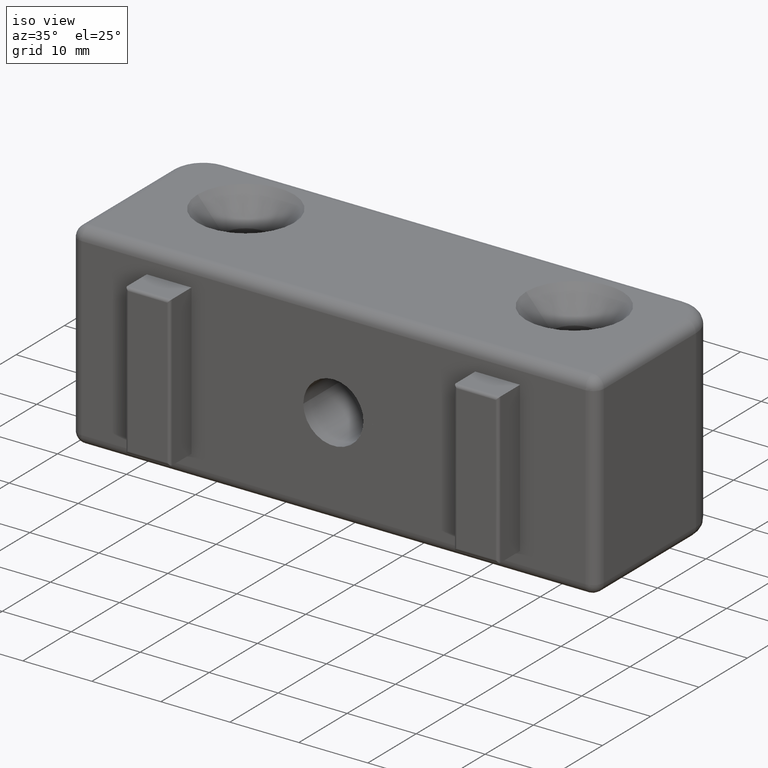
[diagram: clean part render]
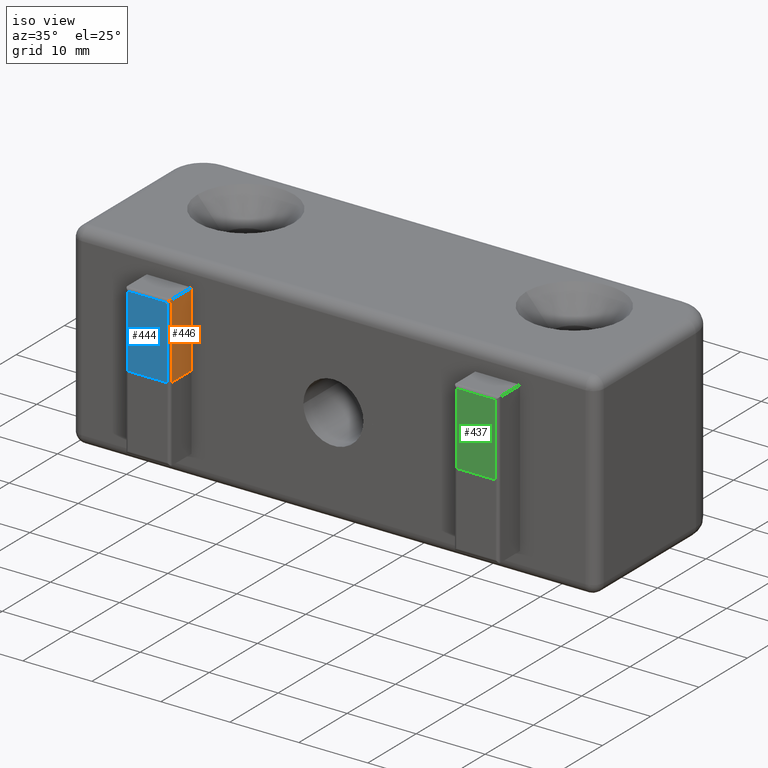
[diagram: same view with three faces highlighted in distinct colors, each labeled with its STEP entity id]
A machine part, iso view with three faces highlighted in distinct colors.
Their STEP definitions:

[orange] entity #446 — the highlighted planar face has unit normal (-1, 0, 0).
#15 = LINE ( 'NONE', #10012, #16 ) ;
#16 = VECTOR ( 'NONE', #9854, 39.37007874015748100 ) ;
#17 = LINE ( 'NONE', #10071, #18 ) ;
#18 = VECTOR ( 'NONE', #10006, 39.37007874015748100 ) ;
#446 = ADVANCED_FACE ( 'NONE', ( #1022 ), #1508, .F. ) ;
#504 = EDGE_CURVE ( 'NONE', #5193, #5182, #1107, .T. ) ;
#1022 = FACE_OUTER_BOUND ( 'NONE', #5447, .T. ) ;
#1097 = LINE ( 'NONE', #9904, #1109 ) ;
#1107 = LINE ( 'NONE', #3887, #1108 ) ;
#1108 = VECTOR ( 'NONE', #3891, 39.37007874015748100 ) ;
#1109 = VECTOR ( 'NONE', #9966, 39.37007874015748100 ) ;
#1229 = EDGE_CURVE ( 'NONE', #5213, #5215, #1097, .T. ) ;
#1239 = EDGE_CURVE ( 'NONE', #5213, #5182, #15, .T. ) ;
#1240 = EDGE_CURVE ( 'NONE', #5215, #5193, #17, .T. ) ;
#1461 = DIRECTION ( 'NONE',  ( 0.0000000000000000000, 0.0000000000000000000, 1.000000000000000000 ) ) ;
#1496 = DIRECTION ( 'NONE',  ( -1.000000000000000000, 0.0000000000000000000, 0.0000000000000000000 ) ) ;
#1508 = PLANE ( 'NONE',  #3757 ) ;
#1511 = CARTESIAN_POINT ( 'NONE',  ( -0.8100000000000000500, 2.204364238465238300E-017, 0.5625000000000000000 ) ) ;
#2173 = CARTESIAN_POINT ( 'NONE',  ( -0.8100000000000000500, -0.1593749999999996800, 0.4284999999999998800 ) ) ;
#2205 = CARTESIAN_POINT ( 'NONE',  ( -0.8100000000000000500, 3.122849337825774000E-017, 0.4284999999999998800 ) ) ;
#2326 = CARTESIAN_POINT ( 'NONE',  ( -0.8100000000000000500, -0.1593749999999996800, 0.0000000000000000000 ) ) ;
#2515 = CARTESIAN_POINT ( 'NONE',  ( -0.8100000000000000500, 2.204364238465238300E-017, 0.0000000000000000000 ) ) ;
#3757 = AXIS2_PLACEMENT_3D ( 'NONE', #1511, #1496, #1461 ) ;
#3887 = CARTESIAN_POINT ( 'NONE',  ( -0.8100000000000000500, 2.204364238465238300E-017, 0.0000000000000000000 ) ) ;
#3891 = DIRECTION ( 'NONE',  ( 0.0000000000000000000, 1.000000000000000000, 0.0000000000000000000 ) ) ;
#4835 = ORIENTED_EDGE ( 'NONE', *, *, #1240, .T. ) ;
#4836 = ORIENTED_EDGE ( 'NONE', *, *, #504, .T. ) ;
#4837 = ORIENTED_EDGE ( 'NONE', *, *, #1239, .F. ) ;
#4838 = ORIENTED_EDGE ( 'NONE', *, *, #1229, .T. ) ;
#5182 = VERTEX_POINT ( 'NONE', #2515 ) ;
#5193 = VERTEX_POINT ( 'NONE', #2326 ) ;
#5213 = VERTEX_POINT ( 'NONE', #2205 ) ;
#5215 = VERTEX_POINT ( 'NONE', #2173 ) ;
#5447 = EDGE_LOOP ( 'NONE', ( #4835, #4836, #4837, #4838 ) ) ;
#9854 = DIRECTION ( 'NONE',  ( -0.0000000000000000000, -0.0000000000000000000, -1.000000000000000000 ) ) ;
#9904 = CARTESIAN_POINT ( 'NONE',  ( -0.8100000000000000500, 2.204364238465238300E-017, 0.4284999999999998800 ) ) ;
#9966 = DIRECTION ( 'NONE',  ( 0.0000000000000000000, -1.000000000000000000, 0.0000000000000000000 ) ) ;
#10006 = DIRECTION ( 'NONE',  ( 0.0000000000000000000, 0.0000000000000000000, -1.000000000000000000 ) ) ;
#10012 = CARTESIAN_POINT ( 'NONE',  ( -0.8100000000000000500, 2.204364238465238300E-017, 0.5625000000000000000 ) ) ;
#10071 = CARTESIAN_POINT ( 'NONE',  ( -0.8100000000000000500, -0.1593749999999996800, 0.5625000000000000000 ) ) ;

[blue] entity #444 — the highlighted planar face has unit normal (-0, 1, 0).
#5 = LINE ( 'NONE', #9855, #6 ) ;
#6 = VECTOR ( 'NONE', #10002, 39.37007874015748100 ) ;
#11 = LINE ( 'NONE', #10032, #12 ) ;
#12 = VECTOR ( 'NONE', #10082, 39.37007874015748100 ) ;
#13 = LINE ( 'NONE', #10024, #14 ) ;
#14 = VECTOR ( 'NONE', #10028, 39.37007874015748100 ) ;
#444 = ADVANCED_FACE ( 'NONE', ( #1018 ), #1365, .F. ) ;
#528 = EDGE_CURVE ( 'NONE', #5185, #5179, #1967, .T. ) ;
#1018 = FACE_OUTER_BOUND ( 'NONE', #5442, .T. ) ;
#1232 = EDGE_CURVE ( 'NONE', #5179, #5247, #5, .T. ) ;
#1235 = EDGE_CURVE ( 'NONE', #5221, #5185, #11, .T. ) ;
#1236 = EDGE_CURVE ( 'NONE', #5247, #5221, #13, .T. ) ;
#1365 = PLANE ( 'NONE',  #3755 ) ;
#1510 = DIRECTION ( 'NONE',  ( -1.000000000000000000, -1.071312938691868600E-015, 0.0000000000000000000 ) ) ;
#1513 = DIRECTION ( 'NONE',  ( -1.071312938691868600E-015, 1.000000000000000000, 0.0000000000000000000 ) ) ;
#1524 = CARTESIAN_POINT ( 'NONE',  ( -1.064999999999999900, -0.1749999999999999300, 0.5625000000000000000 ) ) ;
#1957 = VECTOR ( 'NONE', #3921, 39.37007874015748100 ) ;
#1967 = LINE ( 'NONE', #3997, #1957 ) ;
#2111 = CARTESIAN_POINT ( 'NONE',  ( -1.049374999999999900, -0.1749999999999999300, 0.0000000000000000000 ) ) ;
#2120 = CARTESIAN_POINT ( 'NONE',  ( -0.8256250000000001600, -0.1749999999999996800, 0.0000000000000000000 ) ) ;
#2161 = CARTESIAN_POINT ( 'NONE',  ( -1.049374999999999900, -0.1749999999999999300, 0.4128749999999998800 ) ) ;
#2525 = CARTESIAN_POINT ( 'NONE',  ( -0.8256250000000001600, -0.1749999999999996800, 0.4128749999999998800 ) ) ;
#3755 = AXIS2_PLACEMENT_3D ( 'NONE', #1524, #1513, #1510 ) ;
#3921 = DIRECTION ( 'NONE',  ( 1.000000000000000000, 1.071312938691868600E-015, 0.0000000000000000000 ) ) ;
#3997 = CARTESIAN_POINT ( 'NONE',  ( -1.064999999999999900, -0.1749999999999999300, 0.0000000000000000000 ) ) ;
#4827 = ORIENTED_EDGE ( 'NONE', *, *, #1235, .T. ) ;
#4828 = ORIENTED_EDGE ( 'NONE', *, *, #528, .T. ) ;
#4829 = ORIENTED_EDGE ( 'NONE', *, *, #1232, .T. ) ;
#4830 = ORIENTED_EDGE ( 'NONE', *, *, #1236, .T. ) ;
#5179 = VERTEX_POINT ( 'NONE', #2120 ) ;
#5185 = VERTEX_POINT ( 'NONE', #2111 ) ;
#5221 = VERTEX_POINT ( 'NONE', #2161 ) ;
#5247 = VERTEX_POINT ( 'NONE', #2525 ) ;
#5442 = EDGE_LOOP ( 'NONE', ( #4827, #4828, #4829, #4830 ) ) ;
#9855 = CARTESIAN_POINT ( 'NONE',  ( -0.8256250000000001600, -0.1749999999999996800, 0.5625000000000000000 ) ) ;
#10002 = DIRECTION ( 'NONE',  ( -0.0000000000000000000, -0.0000000000000000000, 1.000000000000000000 ) ) ;
#10024 = CARTESIAN_POINT ( 'NONE',  ( -1.064999999999999900, -0.1749999999999999300, 0.4128749999999998800 ) ) ;
#10028 = DIRECTION ( 'NONE',  ( -1.000000000000000000, -1.071312938691868600E-015, -0.0000000000000000000 ) ) ;
#10032 = CARTESIAN_POINT ( 'NONE',  ( -1.049374999999999900, -0.1749999999999999300, 0.5625000000000000000 ) ) ;
#10082 = DIRECTION ( 'NONE',  ( 0.0000000000000000000, 0.0000000000000000000, -1.000000000000000000 ) ) ;

[green] entity #437 — the highlighted planar face has unit normal (0, 1, 0).
#437 = ADVANCED_FACE ( 'NONE', ( #1008 ), #2328, .F. ) ;
#536 = EDGE_CURVE ( 'NONE', #5237, #5156, #1969, .T. ) ;
#1008 = FACE_OUTER_BOUND ( 'NONE', #5435, .T. ) ;
#1207 = EDGE_CURVE ( 'NONE', #5216, #5214, #2019, .T. ) ;
#1222 = EDGE_CURVE ( 'NONE', #5156, #5216, #2058, .T. ) ;
#1223 = EDGE_CURVE ( 'NONE', #5214, #5237, #2060, .T. ) ;
#1969 = LINE ( 'NONE', #3982, #1980 ) ;
#1980 = VECTOR ( 'NONE', #3872, 39.37007874015748100 ) ;
#2019 = LINE ( 'NONE', #9930, #2033 ) ;
#2033 = VECTOR ( 'NONE', #9941, 39.37007874015748100 ) ;
#2058 = LINE ( 'NONE', #9968, #2059 ) ;
#2059 = VECTOR ( 'NONE', #10004, 39.37007874015748100 ) ;
#2060 = LINE ( 'NONE', #10001, #2061 ) ;
#2061 = VECTOR ( 'NONE', #9902, 39.37007874015748100 ) ;
#2171 = CARTESIAN_POINT ( 'NONE',  ( 0.8256250000000001600, -0.1749999999999996800, 0.4128749999999998800 ) ) ;
#2216 = CARTESIAN_POINT ( 'NONE',  ( 1.049374999999999900, -0.1749999999999996800, 0.4128749999999998800 ) ) ;
#2312 = DIRECTION ( 'NONE',  ( 0.0000000000000000000, -0.0000000000000000000, 1.000000000000000000 ) ) ;
#2314 = DIRECTION ( 'NONE',  ( 0.0000000000000000000, 1.000000000000000000, 0.0000000000000000000 ) ) ;
#2328 = PLANE ( 'NONE',  #3748 ) ;
#2346 = CARTESIAN_POINT ( 'NONE',  ( 0.8100000000000000500, -0.1749999999999996800, 0.5625000000000000000 ) ) ;
#2494 = CARTESIAN_POINT ( 'NONE',  ( 1.049374999999999900, -0.1749999999999996800, 0.0000000000000000000 ) ) ;
#2535 = CARTESIAN_POINT ( 'NONE',  ( 0.8256250000000001600, -0.1749999999999996800, 0.0000000000000000000 ) ) ;
#3748 = AXIS2_PLACEMENT_3D ( 'NONE', #2346, #2314, #2312 ) ;
#3872 = DIRECTION ( 'NONE',  ( 1.000000000000000000, 0.0000000000000000000, 0.0000000000000000000 ) ) ;
#3982 = CARTESIAN_POINT ( 'NONE',  ( 0.8100000000000000500, -0.1749999999999996800, 0.0000000000000000000 ) ) ;
#4799 = ORIENTED_EDGE ( 'NONE', *, *, #1223, .T. ) ;
#4800 = ORIENTED_EDGE ( 'NONE', *, *, #536, .T. ) ;
#4801 = ORIENTED_EDGE ( 'NONE', *, *, #1222, .T. ) ;
#4802 = ORIENTED_EDGE ( 'NONE', *, *, #1207, .T. ) ;
#5156 = VERTEX_POINT ( 'NONE', #2494 ) ;
#5214 = VERTEX_POINT ( 'NONE', #2171 ) ;
#5216 = VERTEX_POINT ( 'NONE', #2216 ) ;
#5237 = VERTEX_POINT ( 'NONE', #2535 ) ;
#5435 = EDGE_LOOP ( 'NONE', ( #4799, #4800, #4801, #4802 ) ) ;
#9902 = DIRECTION ( 'NONE',  ( 0.0000000000000000000, 0.0000000000000000000, -1.000000000000000000 ) ) ;
#9930 = CARTESIAN_POINT ( 'NONE',  ( 0.8100000000000000500, -0.1749999999999996800, 0.4128749999999998800 ) ) ;
#9941 = DIRECTION ( 'NONE',  ( -1.000000000000000000, -0.0000000000000000000, -0.0000000000000000000 ) ) ;
#9968 = CARTESIAN_POINT ( 'NONE',  ( 1.049374999999999900, -0.1749999999999996800, 0.5625000000000000000 ) ) ;
#10001 = CARTESIAN_POINT ( 'NONE',  ( 0.8256250000000001600, -0.1749999999999996800, 0.5625000000000000000 ) ) ;
#10004 = DIRECTION ( 'NONE',  ( -0.0000000000000000000, -0.0000000000000000000, 1.000000000000000000 ) ) ;